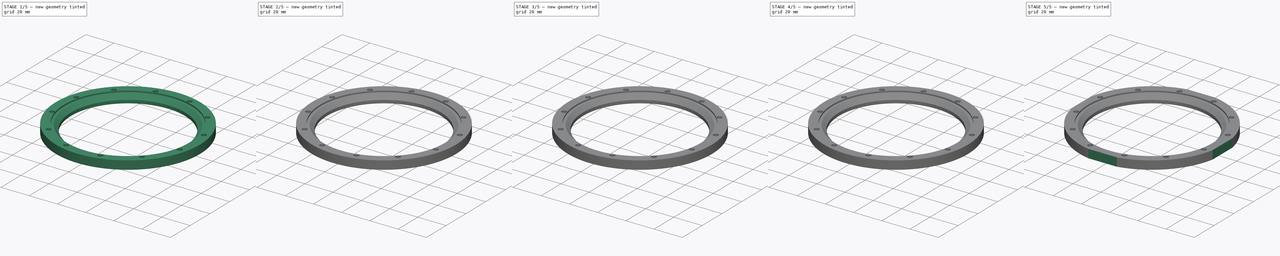
[diagram: build sequence overview — one tinted view per stage of 5, left to right]
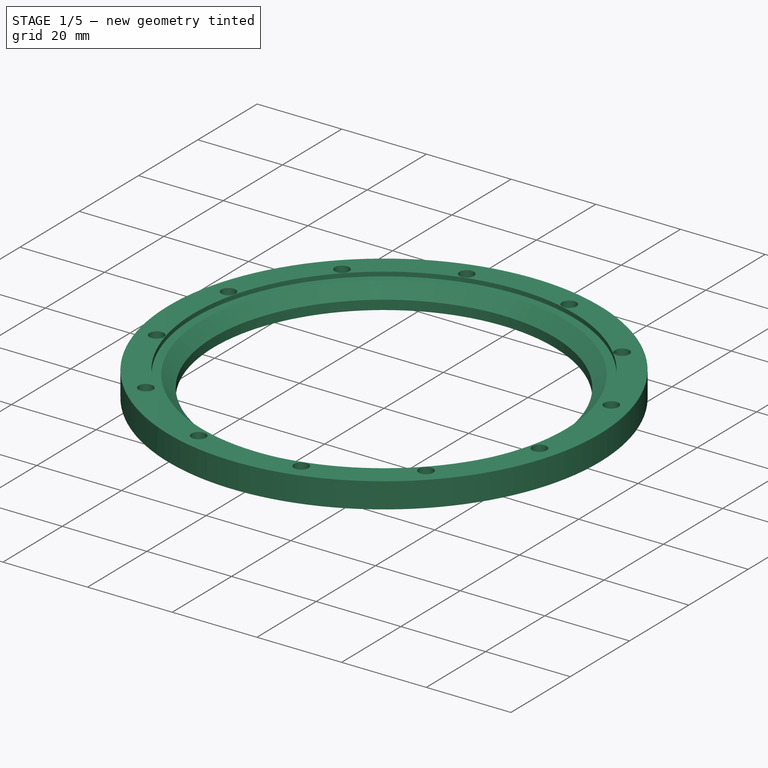
[diagram: stage 1 of 5 — iso view after this stage's code; geometry added in this stage tinted green]
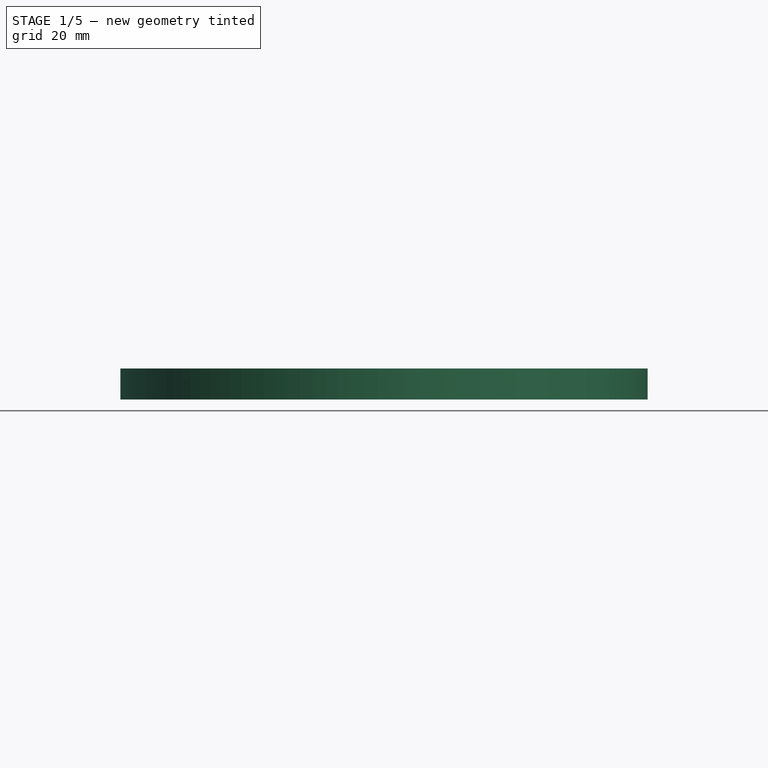
[diagram: stage 1 of 5 — front view after this stage's code; geometry added in this stage tinted green]
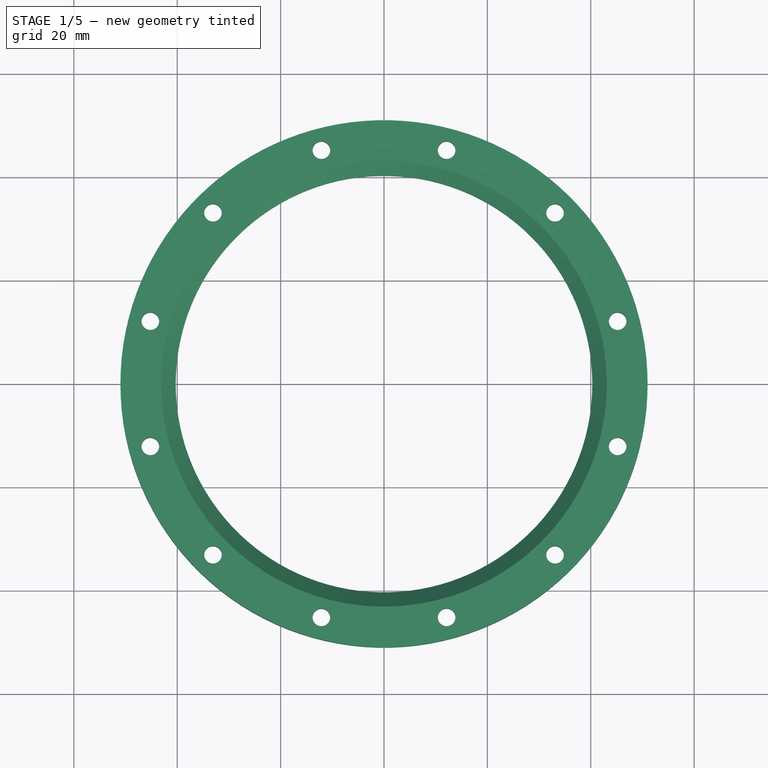
[diagram: stage 1 of 5 — top view after this stage's code; geometry added in this stage tinted green]
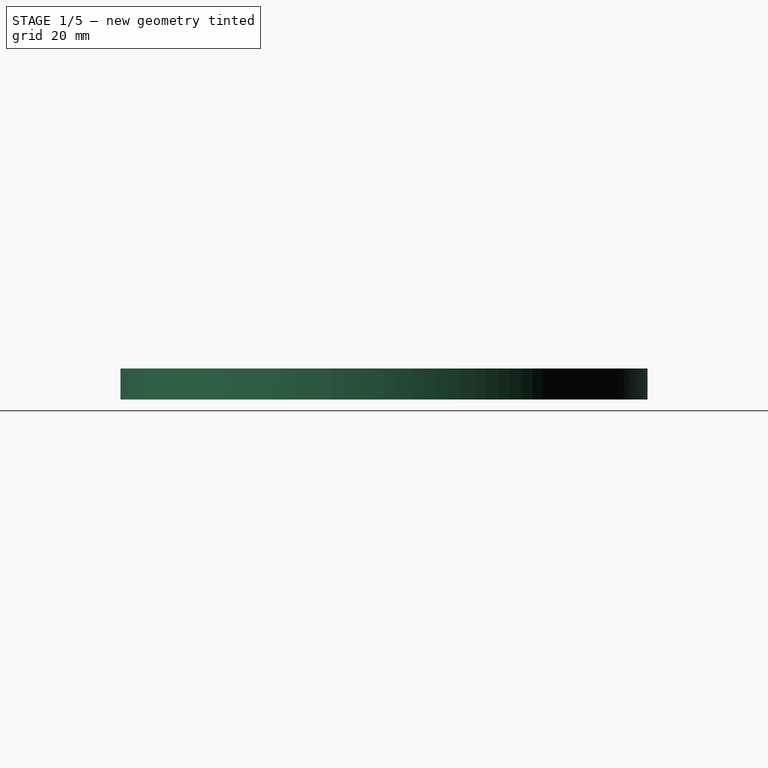
[diagram: stage 1 of 5 — right view after this stage's code; geometry added in this stage tinted green]
FCSTD DOCUMENT  (FreeCAD 0.16R6705 (Git))
Label: BearingRace
License: All rights reserved
LicenseURL: http://en.wikipedia.org/wiki/All_rights_reserved
objects: PartDesign::Chamfer×12, Sketcher::SketchObject×4, PartDesign::Pocket×3, PartDesign::PolarPattern×2, PartDesign::Revolution×1
note: 26 computed .brp shape members not serialized (recipe doc carries the construction recipe); baked Part::Feature solids carry a one-line shape summary decoded from their .brp

FEATURE [Sketcher::SketchObject] Sketch013
  Placement = pos=(0,0,0) rot=(1,0,0;1.5708rad)
  sketch-geometry (12):
    g0: LineSegment StartX=40.3 StartY=0 StartZ=0 EndX=40.3 EndY=2.19878 EndZ=0
    g1: LineSegment StartX=40.3 StartY=2.19878 StartZ=0 EndX=43.1012 EndY=5 EndZ=0
    g2: LineSegment StartX=45 StartY=6 StartZ=0 EndX=51 EndY=6 EndZ=0
    g3: LineSegment StartX=51 StartY=6 StartZ=0 EndX=51 EndY=0 EndZ=0
    g4: LineSegment StartX=43.1012 StartY=5 StartZ=0 EndX=45 EndY=5 EndZ=0
    g5: LineSegment StartX=45 StartY=5 StartZ=0 EndX=45 EndY=6 EndZ=0
    g6: Circle [constr] CenterX=40 CenterY=6 CenterZ=0 NormalX=0 NormalY=0 NormalZ=1 Radius=2.9
    g7: LineSegment [constr] StartX=40 StartY=6 StartZ=0 EndX=45 EndY=6 EndZ=0
    g8: LineSegment StartX=40.3 StartY=0 StartZ=0 EndX=51 EndY=0 EndZ=0
    g9: LineSegment [constr] StartX=42.0506 StartY=3.94941 StartZ=0 EndX=43.6865 EndY=2.31351 EndZ=0
    g10: LineSegment [constr] StartX=43.6865 StartY=2.31351 StartZ=0 EndX=43.6865 EndY=0 EndZ=0
    g11: Circle CenterX=43.6865 CenterY=2.31351 CenterZ=0 NormalX=0 NormalY=0 NormalZ=1 Radius=0.2
  constraints (39):
    c: Vertical(g0)
    c: Coincident(g0,g1)
    c: Horizontal(g2)
    c: Coincident(g3,g2)
    c: Vertical(g3)
    c: Coincident(g1,g4)
    c: Coincident(g4,g5)
    c: Coincident(g2,g5)
    c: Vertical(g5)
    c: Horizontal(g4)
    c: Radius(g6) = 2.9
    c: Tangent(g1,g6)
    c: Coincident(g7,g6)
    c: Horizontal(g7)
    c: Angle(g1,g7) = 2.35619
    c: DistanceX(g6,g0) = 0.3
    c: DistanceY(g1,g6) = 1
    c: Coincident(g2,g7)
    c: DistanceX(g-1,g4) = 45
    c: DistanceX(g-1,g6) = 40
    c: DistanceX(g2,g2) = 6
    c: DistanceX(g1,g4) = 1.89878
    c: Coincident(g8,g0)
    c: Horizontal(g8)
    c: Coincident(g8,g3)
    c: DistanceY(g3,g2) = 6
    c: DistanceY(g0,g0) = 2.19878
    c: DistanceX(g-1,g3) = 51
    c: PointOnObject(g0,g-1)
    c: PointOnObject(g9,g1)
    c: Coincident(g10,g9)
    c: PointOnObject(g10,g8)
    c: Vertical(g10)
    c: PointOnObject(g9,g6)
    c: Angle(g1,g9) = 1.5708
    c: Equal(g9,g10)
    c: Coincident(g11,g9)
    c: Radius(g11) = 0.2
    c: Distance(g9,g9) = 2.31351
FEATURE [PartDesign::Revolution] Revolution
  Angle = 360
  Axis = (0,0,1)
  Base = (0,0,0)
  Placement = pos=(0,0,0) rot=(1,0,0;1.5708rad)
  ReferenceAxis = -> Sketch013 [V_Axis]
  Reversed = true
  Sketch = -> Sketch013
FEATURE [Sketcher::SketchObject] Sketch
  Placement = pos=(0,0,0) rot=(1,0,0;3.14159rad)
  Support = -> Revolution [Face7]
  sketch-geometry (3):
    g0: Circle CenterX=45.2053 CenterY=12.1127 CenterZ=0 NormalX=0 NormalY=0 NormalZ=1 Radius=1.7
    g1: Circle [constr] CenterX=0 CenterY=0 CenterZ=0 NormalX=0 NormalY=0 NormalZ=1 Radius=51
    g2: LineSegment [constr] StartX=0 StartY=0 StartZ=0 EndX=45.2053 EndY=12.1127 EndZ=0
  constraints (8):
    c: Radius(g0) = 1.7
    c: DistanceX(g-1,g0) = 45.2053
    c: Coincident(g1,g-1)
    c: Radius(g1) = 51
    c: Coincident(g2,g0)
    c: Coincident(g2,g-1)
    c: Distance(g-1,g0) = 46.8
    c: Angle(g-1,g2) = 0.261799
FEATURE [PartDesign::Pocket] Pocket
  Length = 5
  Placement = pos=(0,0,0) rot=(1,0,0;1.5708rad)
  Sketch = -> Sketch
  Type = 1
FEATURE [PartDesign::PolarPattern] PolarPattern
  Angle = 360
  Axis = -> Sketch [N_Axis]
  Occurrences = 12
  Originals = -> [Pocket]
  Placement = pos=(0,0,0) rot=(1,0,0;1.5708rad)
FEATURE [PartDesign::Chamfer] Chamfer
  Base = -> PolarPattern [Edge14]
  Placement = pos=(0,0,0) rot=(1,0,0;1.5708rad)
  Size = 1.5
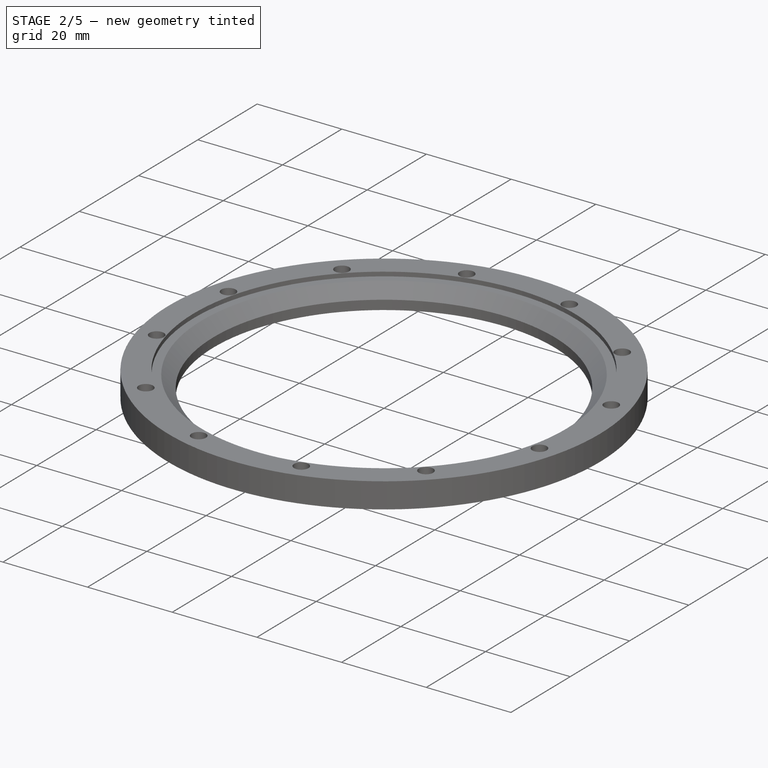
[diagram: stage 2 of 5 — iso view after this stage's code; geometry added in this stage tinted green]
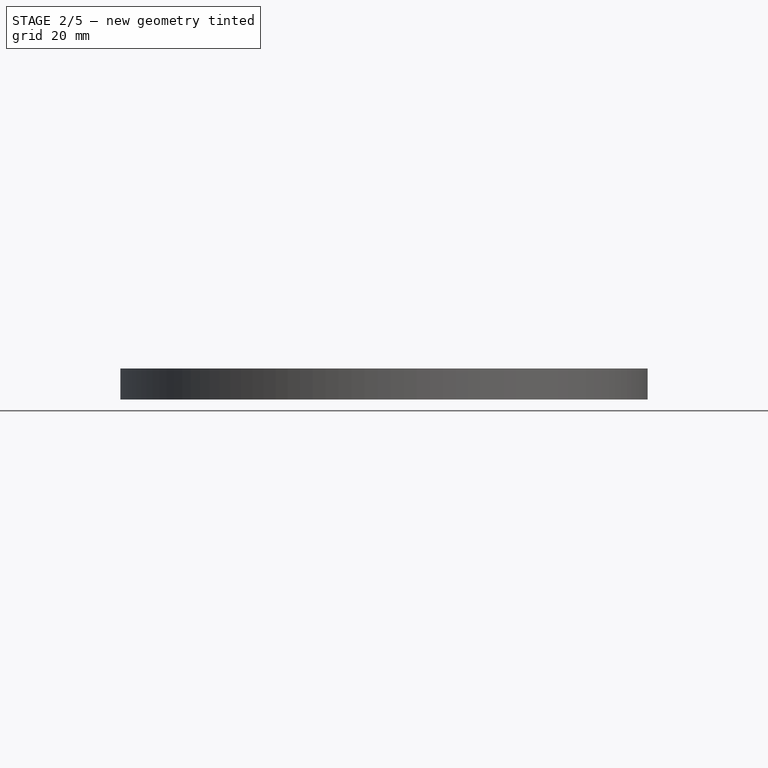
[diagram: stage 2 of 5 — front view after this stage's code; geometry added in this stage tinted green]
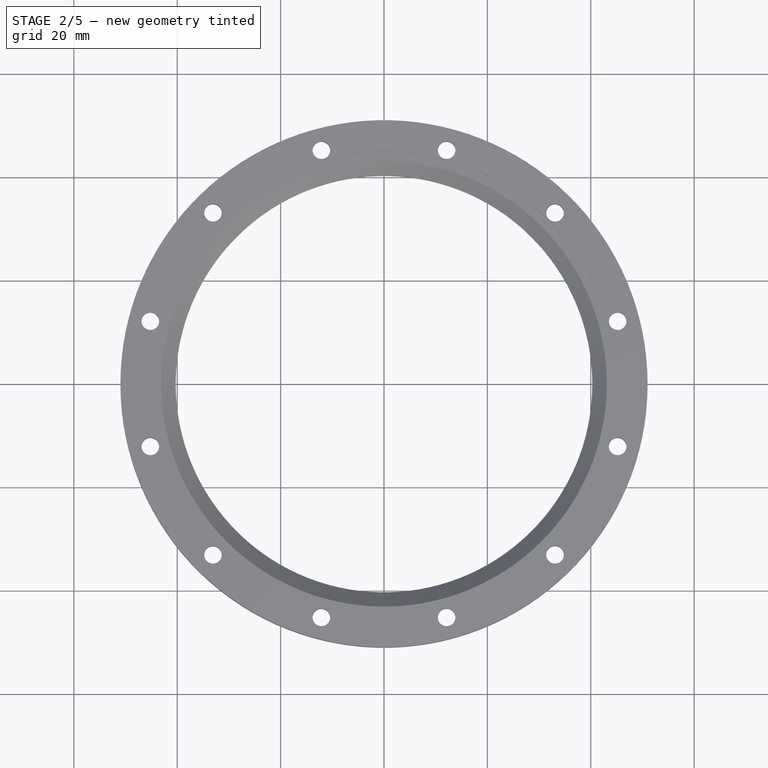
[diagram: stage 2 of 5 — top view after this stage's code; geometry added in this stage tinted green]
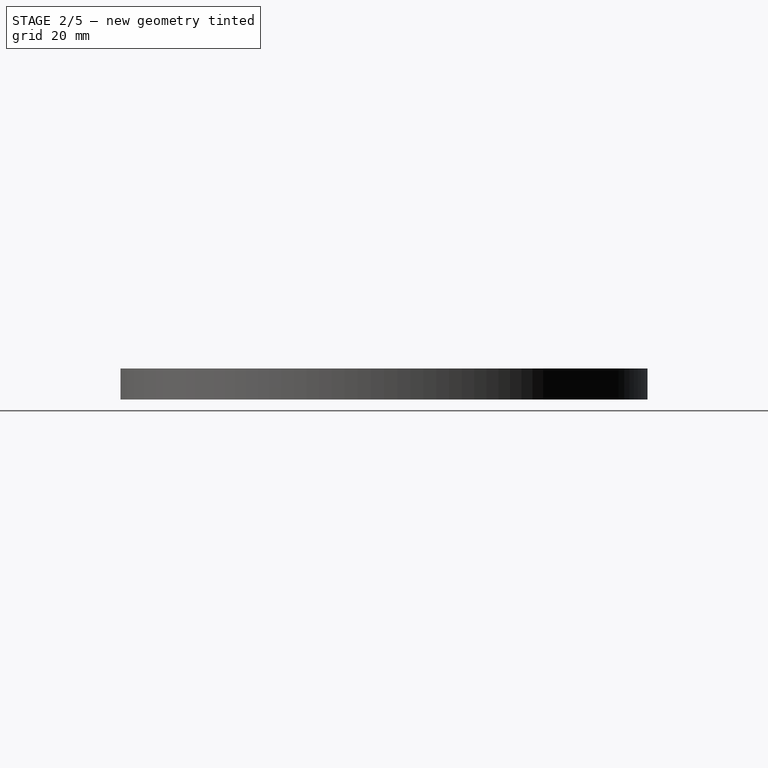
[diagram: stage 2 of 5 — right view after this stage's code; geometry added in this stage tinted green]
FEATURE [PartDesign::Chamfer] Chamfer001
  Base = -> Chamfer [Edge8]
  Placement = pos=(0,0,0) rot=(1,0,0;1.5708rad)
  Size = 1.5
FEATURE [PartDesign::Chamfer] Chamfer002
  Base = -> Chamfer001 [Edge10]
  Placement = pos=(0,0,0) rot=(1,0,0;1.5708rad)
  Size = 1.5
FEATURE [PartDesign::Chamfer] Chamfer003
  Base = -> Chamfer002 [Edge5]
  Placement = pos=(0,0,0) rot=(1,0,0;1.5708rad)
  Size = 1.5
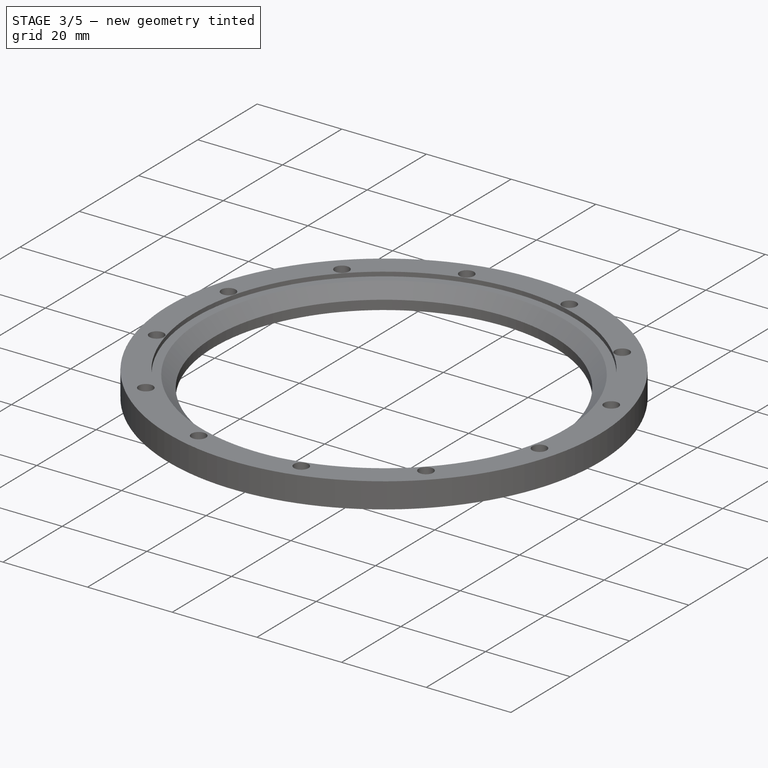
[diagram: stage 3 of 5 — iso view after this stage's code; geometry added in this stage tinted green]
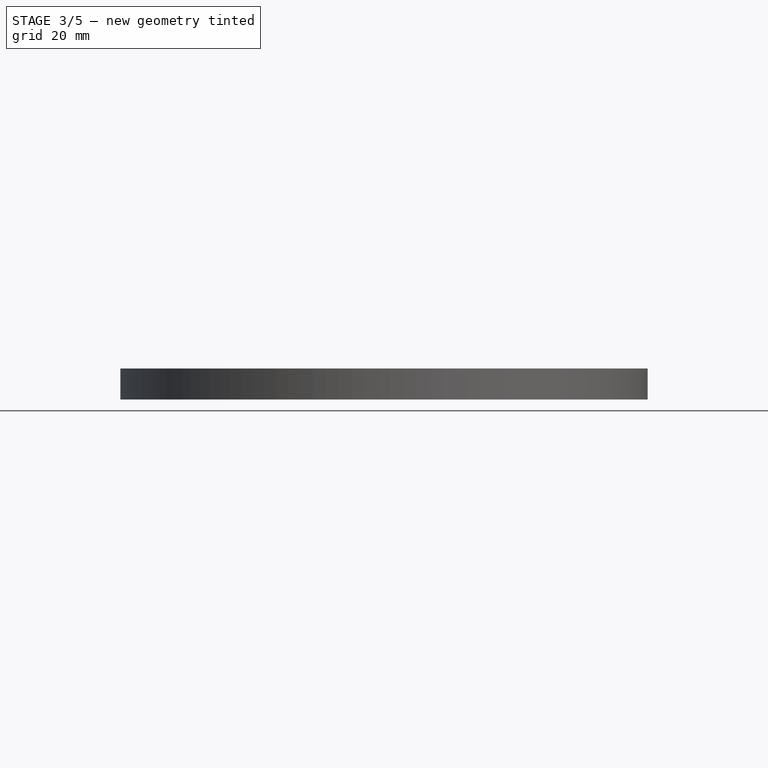
[diagram: stage 3 of 5 — front view after this stage's code; geometry added in this stage tinted green]
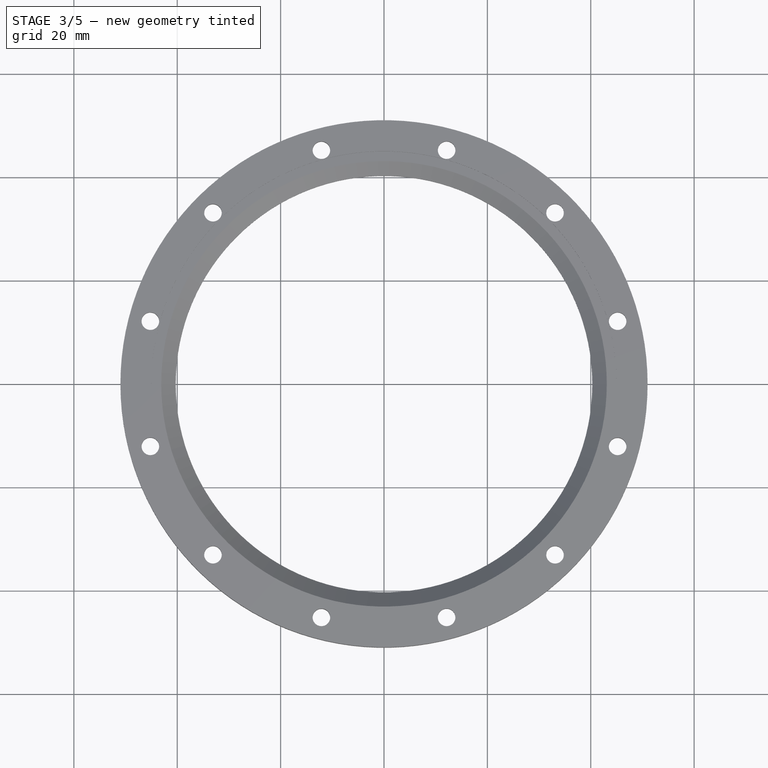
[diagram: stage 3 of 5 — top view after this stage's code; geometry added in this stage tinted green]
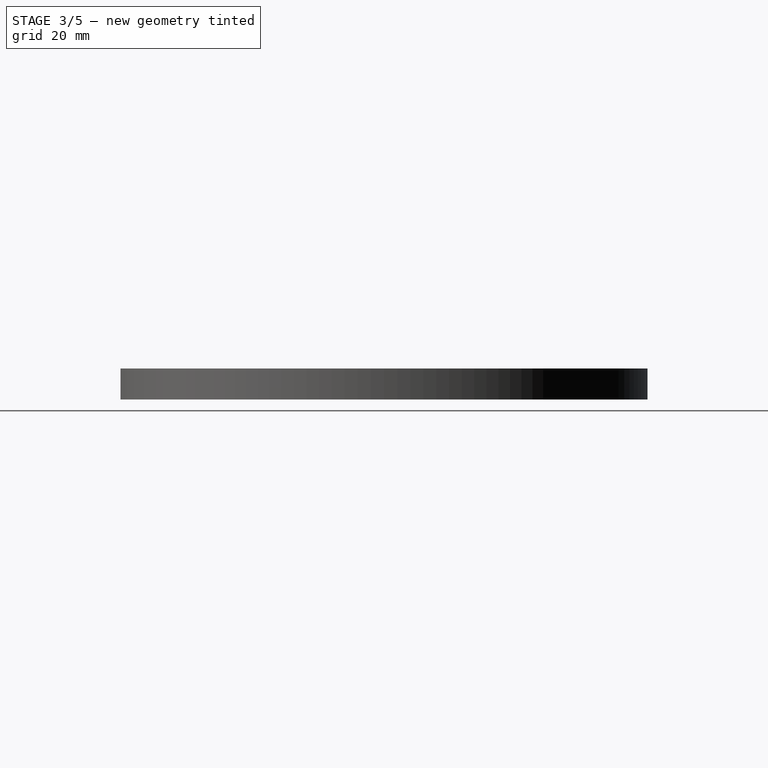
[diagram: stage 3 of 5 — right view after this stage's code; geometry added in this stage tinted green]
FEATURE [PartDesign::Chamfer] Chamfer004
  Base = -> Chamfer003 [Edge8]
  Placement = pos=(0,0,0) rot=(1,0,0;1.5708rad)
  Size = 1.5
FEATURE [PartDesign::Chamfer] Chamfer005
  Base = -> Chamfer004 [Edge11]
  Placement = pos=(0,0,0) rot=(1,0,0;1.5708rad)
  Size = 1.5
FEATURE [PartDesign::Chamfer] Chamfer006
  Base = -> Chamfer005 [Edge14]
  Placement = pos=(0,0,0) rot=(1,0,0;1.5708rad)
  Size = 1.5
FEATURE [PartDesign::Chamfer] Chamfer007
  Base = -> Chamfer006 [Edge12]
  Placement = pos=(0,0,0) rot=(1,0,0;1.5708rad)
  Size = 1.5
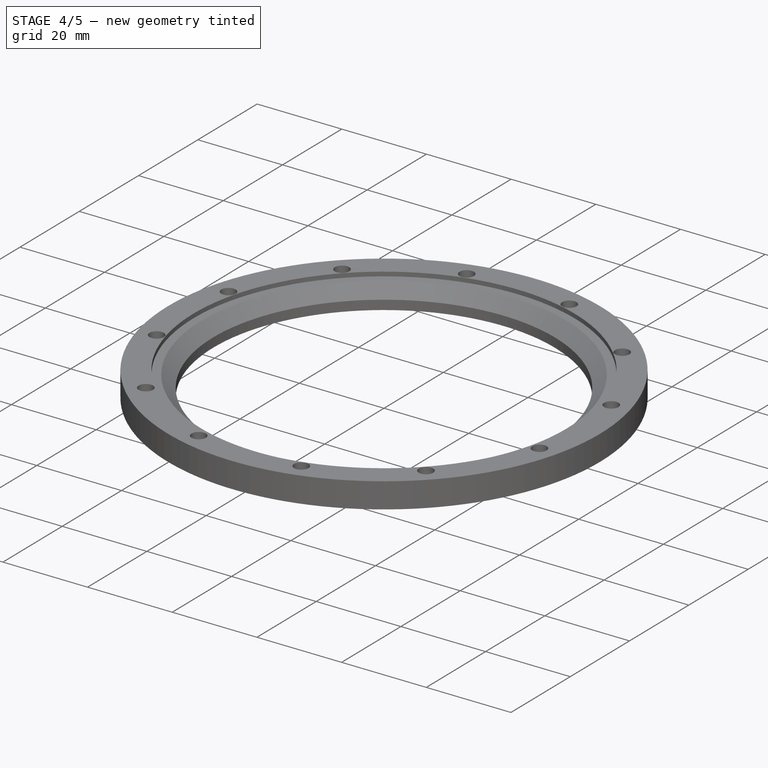
[diagram: stage 4 of 5 — iso view after this stage's code; geometry added in this stage tinted green]
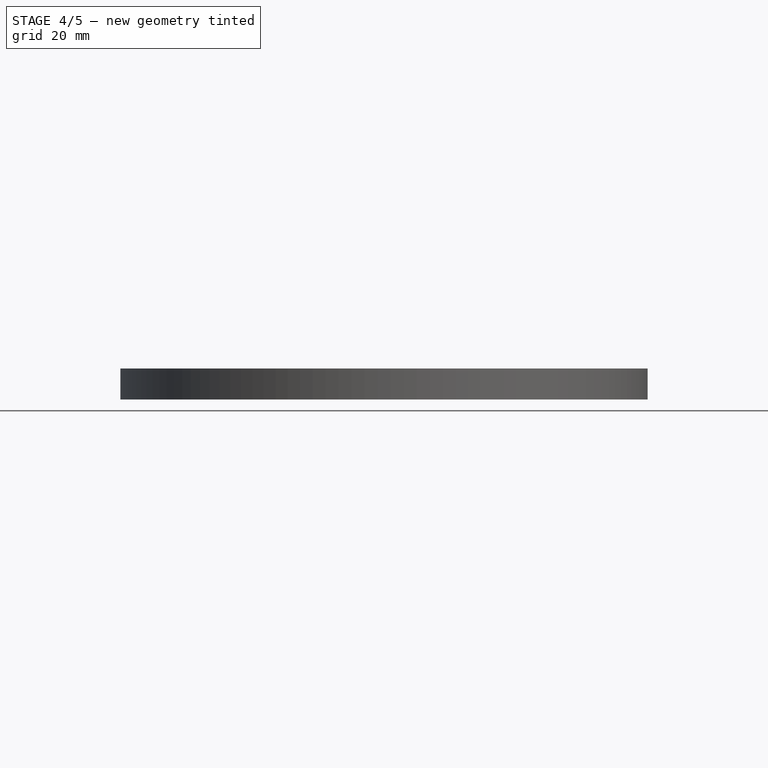
[diagram: stage 4 of 5 — front view after this stage's code; geometry added in this stage tinted green]
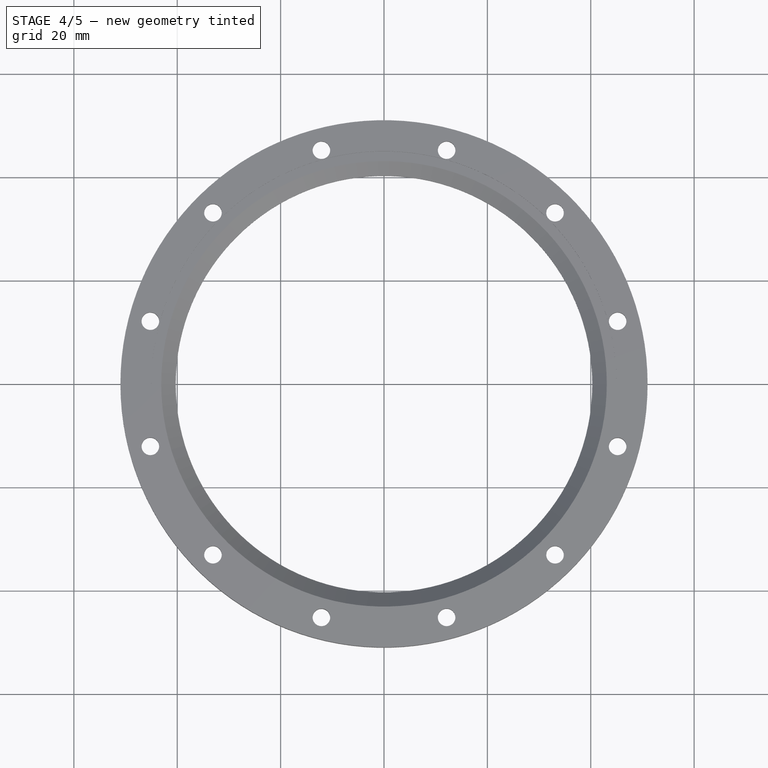
[diagram: stage 4 of 5 — top view after this stage's code; geometry added in this stage tinted green]
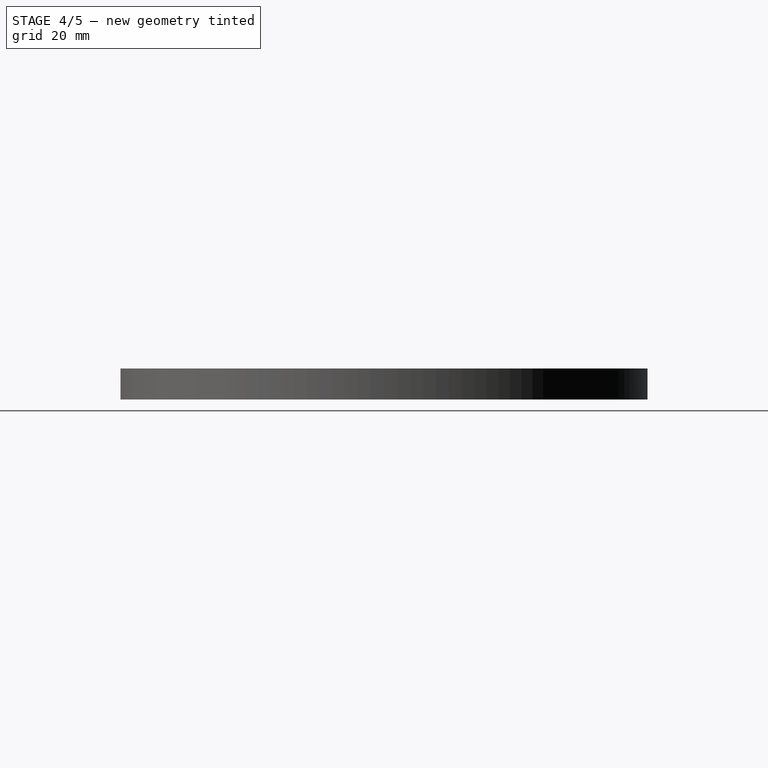
[diagram: stage 4 of 5 — right view after this stage's code; geometry added in this stage tinted green]
FEATURE [PartDesign::Chamfer] Chamfer008
  Base = -> Chamfer007 [Edge12]
  Placement = pos=(0,0,0) rot=(1,0,0;1.5708rad)
  Size = 1.5
FEATURE [PartDesign::Chamfer] Chamfer009
  Base = -> Chamfer008 [Edge14]
  Placement = pos=(0,0,0) rot=(1,0,0;1.5708rad)
  Size = 1.5
FEATURE [Sketcher::SketchObject] Sketch014
  Placement = pos=(0,0,0) rot=(1,0,0;3.14159rad)
  Support = -> Chamfer009 [Face1]
  sketch-geometry (2):
    g0: Circle CenterX=46.8 CenterY=0 CenterZ=0 NormalX=0 NormalY=0 NormalZ=1 Radius=1.5
    g1: LineSegment [constr] StartX=0 StartY=0 StartZ=0 EndX=46.8 EndY=0 EndZ=0
  constraints (5):
    c: Radius(g0) = 1.5
    c: Coincident(g1,g-1)
    c: Coincident(g1,g0)
    c: Distance(g1) = 46.8
    c: Angle(g-1,g1) = 0
FEATURE [PartDesign::Pocket] Pocket001
  Length = 5
  Placement = pos=(0,0,0) rot=(1,0,0;1.5708rad)
  Sketch = -> Sketch014
  Type = 0
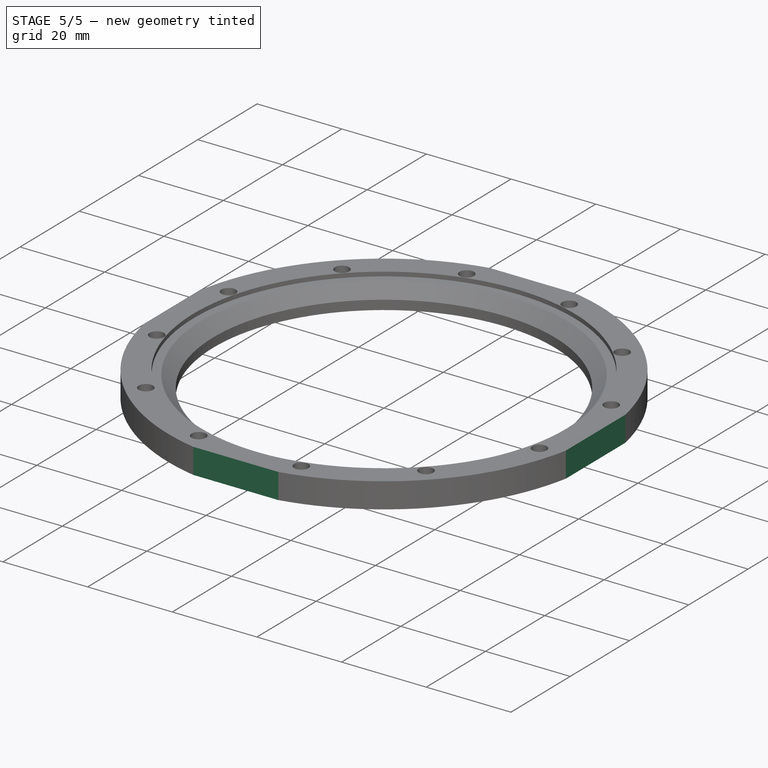
[diagram: stage 5 of 5 — iso view after this stage's code; geometry added in this stage tinted green]
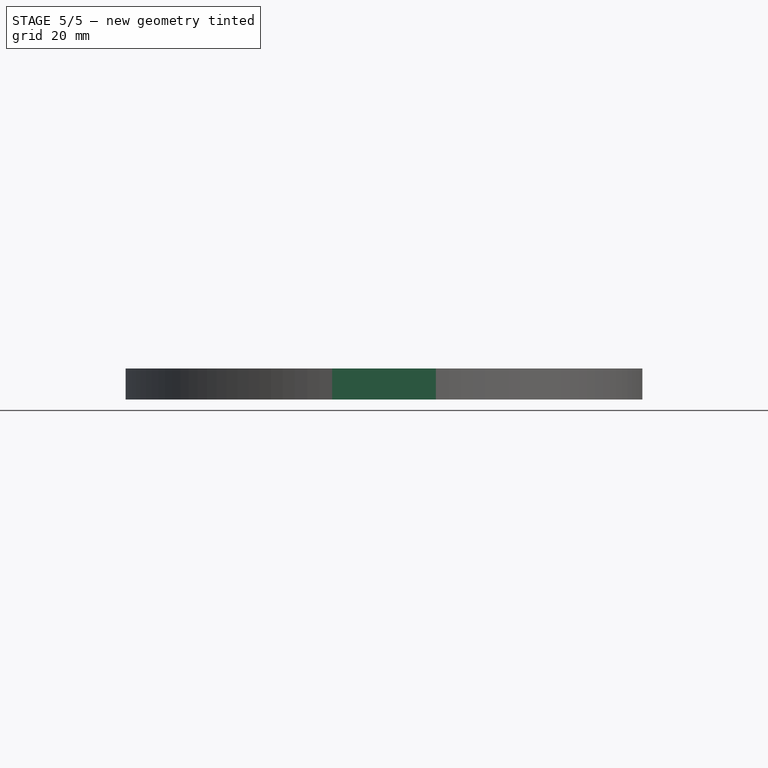
[diagram: stage 5 of 5 — front view after this stage's code; geometry added in this stage tinted green]
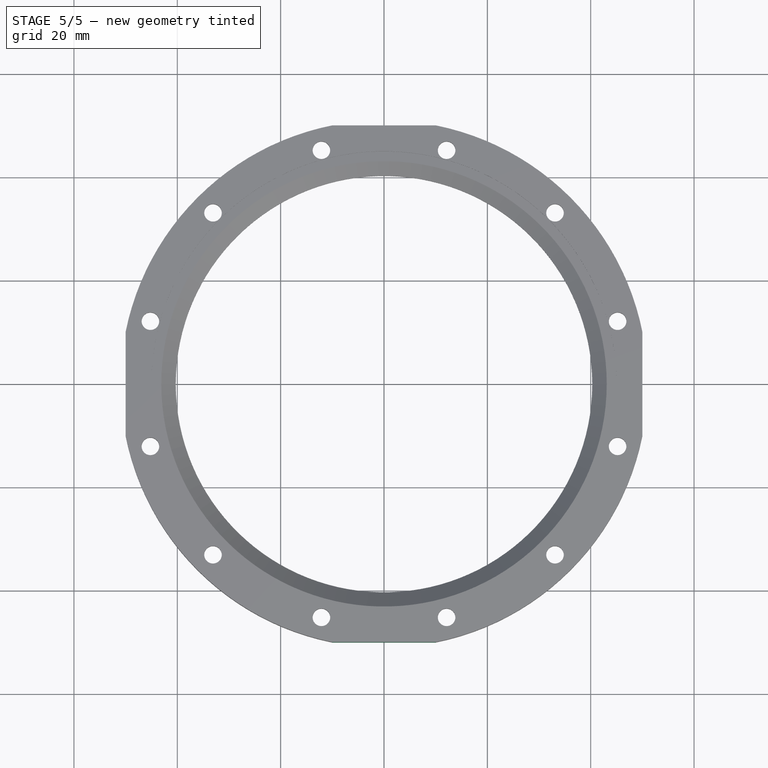
[diagram: stage 5 of 5 — top view after this stage's code; geometry added in this stage tinted green]
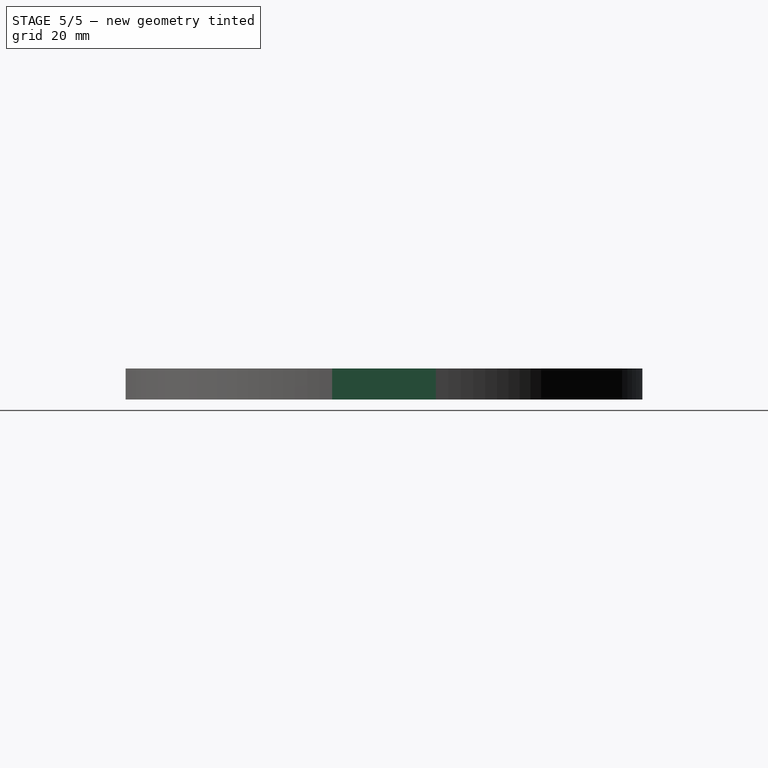
[diagram: stage 5 of 5 — right view after this stage's code; geometry added in this stage tinted green]
FEATURE [PartDesign::PolarPattern] PolarPattern001  label="Round"
  Angle = 360
  Axis = -> Sketch014 [N_Axis]
  Occurrences = 12
  Originals = -> [Pocket001]
  Placement = pos=(0,0,0) rot=(1,0,0;1.5708rad)
FEATURE [Sketcher::SketchObject] Sketch015
  Placement = pos=(0,0,6) rot=(0,0,1;3.14159rad)
  Support = -> PolarPattern001 [Face28]
  sketch-geometry (8):
    g0: LineSegment StartX=-50 StartY=-50 StartZ=0 EndX=50 EndY=-50 EndZ=0
    g1: LineSegment StartX=50 StartY=-50 StartZ=0 EndX=50 EndY=50 EndZ=0
    g2: LineSegment StartX=50 StartY=50 StartZ=0 EndX=-50 EndY=50 EndZ=0
    g3: LineSegment StartX=-50 StartY=50 StartZ=0 EndX=-50 EndY=-50 EndZ=0
    g4: LineSegment StartX=65 StartY=65 StartZ=0 EndX=-65 EndY=65 EndZ=0
    g5: LineSegment StartX=-65 StartY=65 StartZ=0 EndX=-65 EndY=-65 EndZ=0
    g6: LineSegment StartX=-65 StartY=-65 StartZ=0 EndX=65 EndY=-65 EndZ=0
    g7: LineSegment StartX=65 StartY=-65 StartZ=0 EndX=65 EndY=65 EndZ=0
  constraints (22):
    c: Coincident(g0,g1)
    c: Coincident(g1,g2)
    c: Coincident(g2,g3)
    c: Coincident(g3,g0)
    c: Horizontal(g0)
    c: Horizontal(g2)
    c: Vertical(g1)
    c: Vertical(g3)
    c: Symmetric(g1,g0,g-1)
    c: Equal(g3,g2)
    c: DistanceX(g2,g1) = 100
    c: Coincident(g4,g5)
    c: Coincident(g5,g6)
    c: Coincident(g6,g7)
    c: Coincident(g7,g4)
    c: Horizontal(g4)
    c: Horizontal(g6)
    c: Vertical(g5)
    c: Vertical(g7)
    c: Symmetric(g5,g4,g-1)
    c: Equal(g4,g5)
    c: DistanceX(g4,g4) = 130
FEATURE [PartDesign::Pocket] Pocket002  label="Squared"
  Length = 5
  Placement = pos=(0,0,0) rot=(1,0,0;1.5708rad)
  Sketch = -> Sketch015
  Type = 1
FEATURE [PartDesign::Chamfer] Chamfer010
  Base = -> Pocket002 [Edge33]
  Placement = pos=(0,0,0) rot=(1,0,0;1.5708rad)
  Size = 1.5
FEATURE [PartDesign::Chamfer] Chamfer011
  Base = -> Chamfer010 [Edge21]
  Placement = pos=(0,0,0) rot=(1,0,0;1.5708rad)
  Size = 1.5
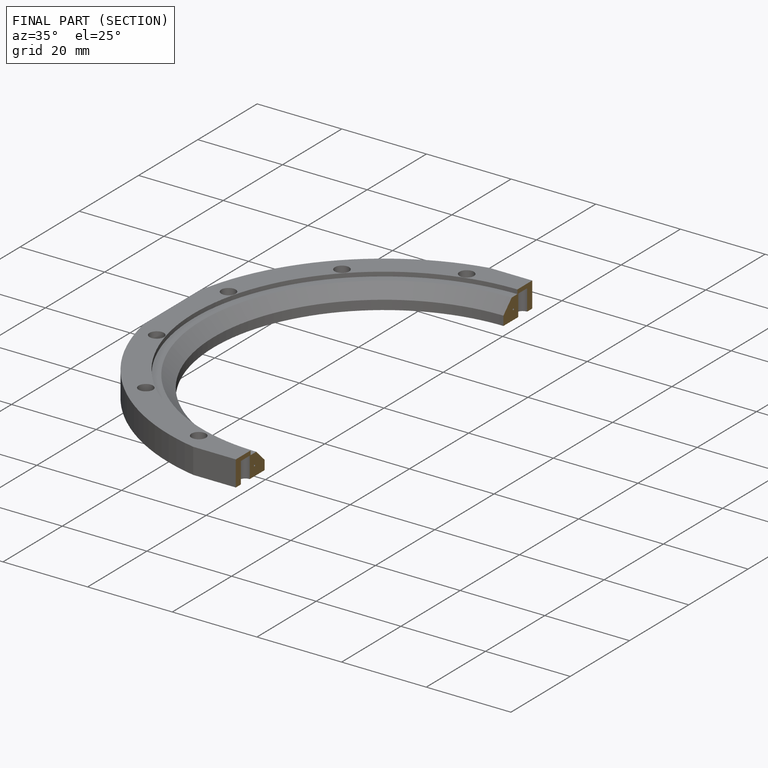
[diagram: finished part — half-section view (interior)]
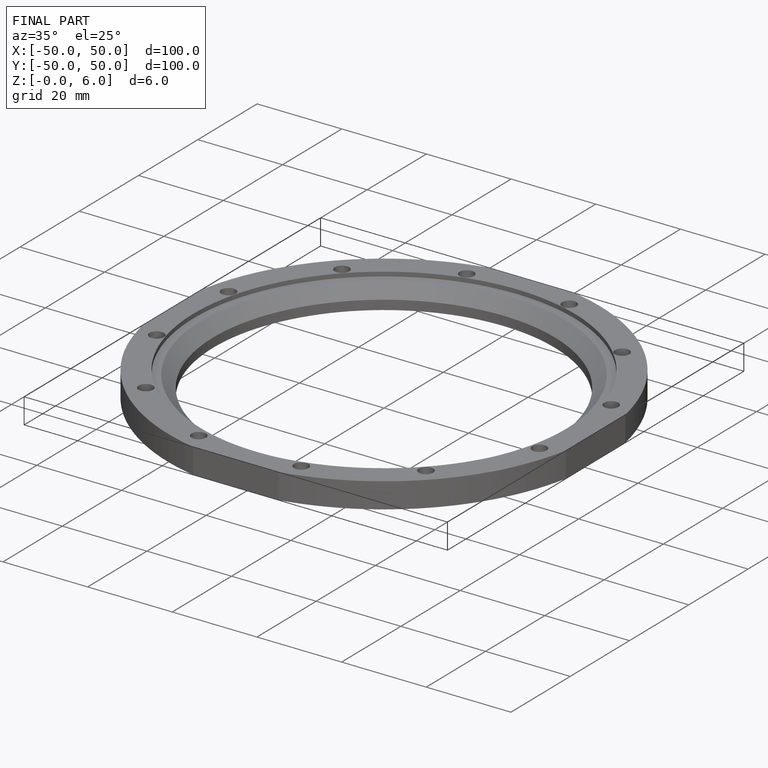
[diagram: finished part — iso view with bounding-box wireframe]
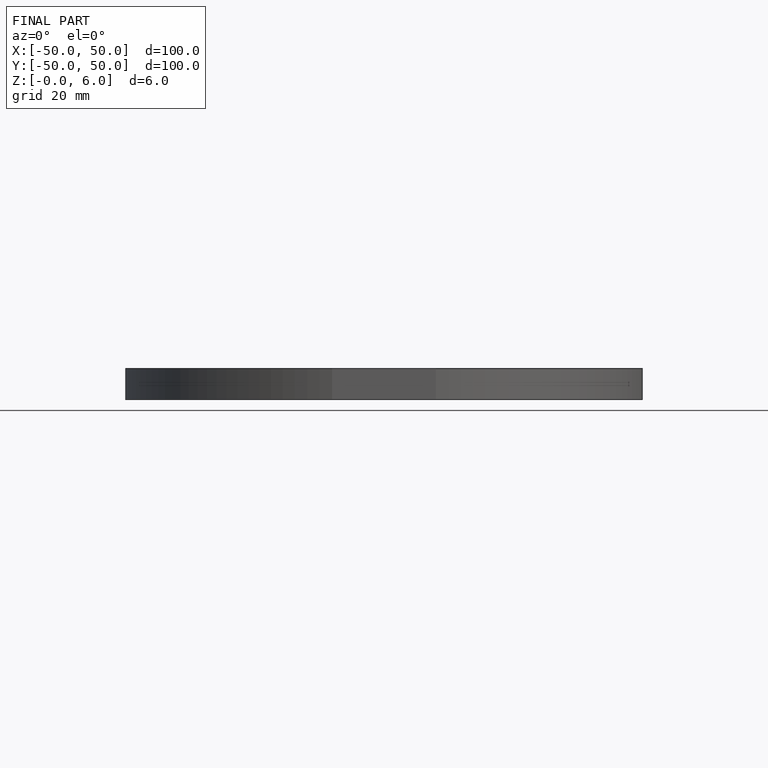
[diagram: finished part — front view with bounding-box wireframe]
